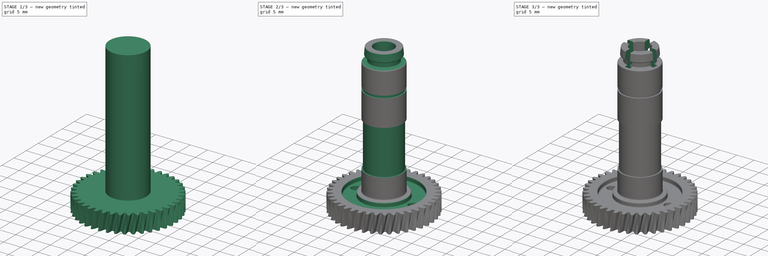
[diagram: build sequence overview — one tinted view per stage of 3, left to right]
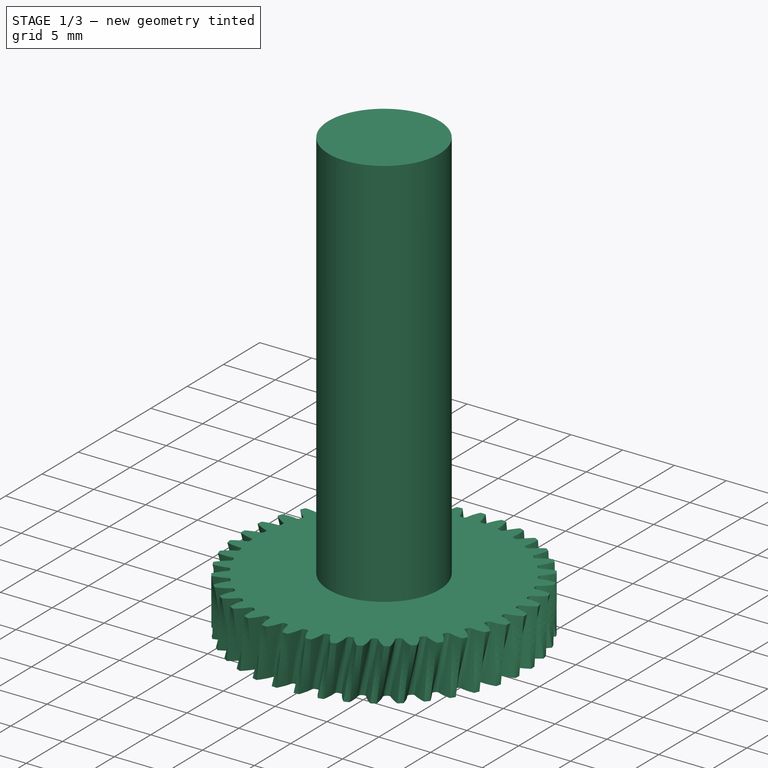
[diagram: stage 1 of 3 — iso view after this stage's code; geometry added in this stage tinted green]
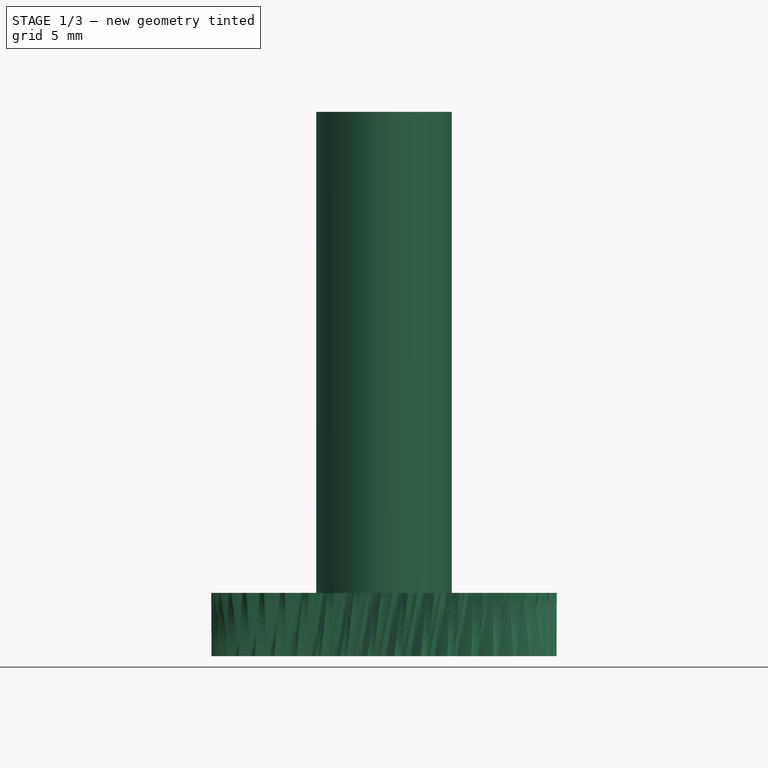
[diagram: stage 1 of 3 — front view after this stage's code; geometry added in this stage tinted green]
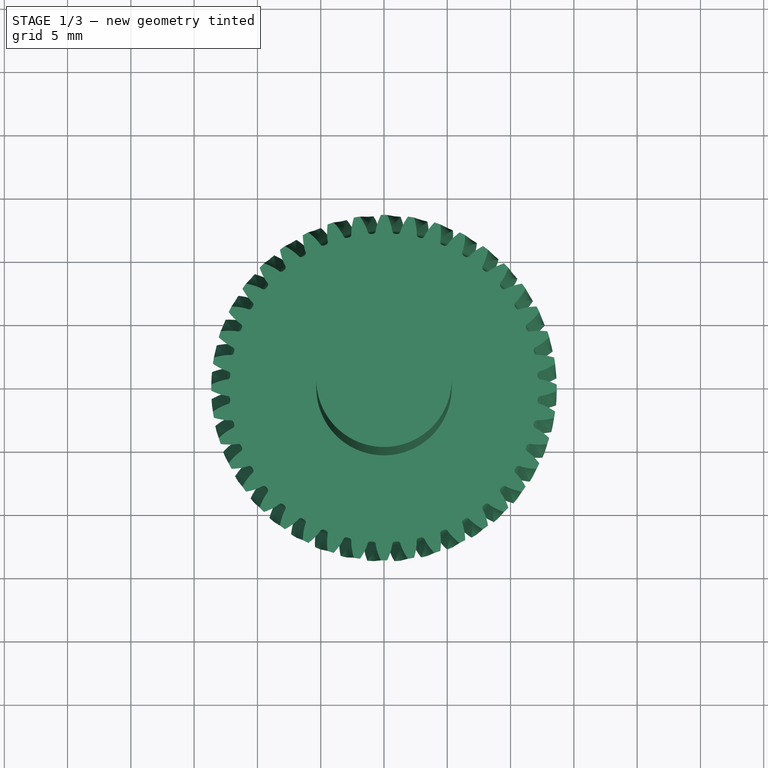
[diagram: stage 1 of 3 — top view after this stage's code; geometry added in this stage tinted green]
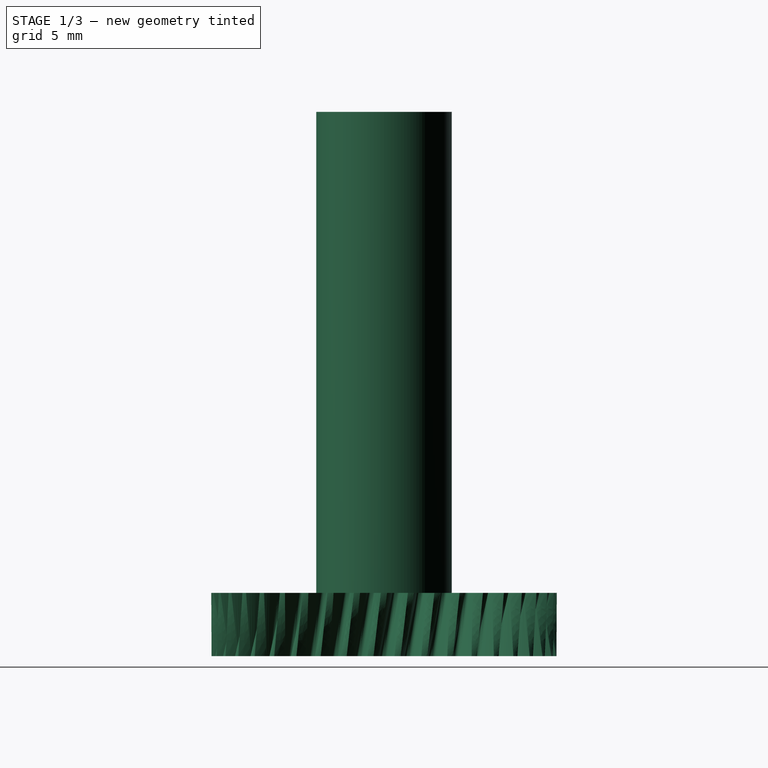
[diagram: stage 1 of 3 — right view after this stage's code; geometry added in this stage tinted green]
FCSTD DOCUMENT  (FreeCAD 1.0R39319 (Git))
Label: Mixer
License: All rights reserved
LicenseURL: https://en.wikipedia.org/wiki/All_rights_reserved
objects: Sketcher::SketchObject×5, PartDesign::Pocket×2, Part::Part2DObjectPython×1, PartDesign::SubShapeBinder×1, PartDesign::AdditiveLoft×1, PartDesign::Pad×1, PartDesign::Groove×1, PartDesign::Fillet×1, PartDesign::PolarPattern×1, PartDesign::Body×1
note: 33 computed .brp shape members not serialized (recipe doc carries the construction recipe); baked Part::Feature solids carry a one-line shape summary decoded from their .brp

FEATURE [Part::Part2DObjectPython] InvoluteGear  # Draft 2D object (typed FeaturePython)
  AddendumCoefficient = 1
  DedendumCoefficient = 1.25
  ExternalGear = true
  HighPrecision = true
  Modules = 0.65
  NumberOfTeeth = 40
  Placement = pos=(0,0,5) rot=(0,0,1;0rad)
  PressureAngle = 20
  ProfileShiftCoefficient = 0
  RootFilletCoefficient = 0.38
FEATURE [PartDesign::SubShapeBinder] Binder
  BindCopyOnChange = 0
  BindMode = 0
  ClaimChildren = false
  Context = -> Body [Binder.]
  Fuse = false
  MakeFace = true
  OffsetFill = false
  OffsetIntersection = false
  OffsetJoinType = 0
  OffsetOpenResult = false
  PartialLoad = false
  Placement = pos=(0,0,-5) rot=(0,0,-1;0.07854rad)
  Refine = true
  Relative = true
  Support = -> [InvoluteGear]
  _Version = 2
FEATURE [Sketcher::SketchObject] Sketch
  ArcFitTolerance = 1e-06
  AttachmentSupport = -> [XY_Plane]
  FullyConstrained = true
  MakeInternals = false
  MapMode = 5
  sketch-geometry (1):
    g0: Circle CenterX=0 CenterY=0 CenterZ=0 NormalX=0 NormalY=0 NormalZ=1 AngleXU=0 Radius=13.75
  constraints (2):
    c: Coincident(g0,g-1)
    c: Diameter(g0) = 27.5
FEATURE [PartDesign::AdditiveLoft] AdditiveLoft
  Closed = false
  Placement = pos=(0,0,-5) rot=(0,0,-1;0.07854rad)
  Profile = -> Binder
  Refine = true
  Ruled = false
  Sections = -> [InvoluteGear]
  Suppressed = false
FEATURE [Sketcher::SketchObject] Sketch001
  ArcFitTolerance = 1e-06
  AttachmentSupport = -> [XY_Plane]
  FullyConstrained = true
  MakeInternals = false
  MapMode = 5
  sketch-geometry (1):
    g0: Circle CenterX=0 CenterY=0 CenterZ=0 NormalX=0 NormalY=0 NormalZ=1 AngleXU=0 Radius=5.35
  constraints (2):
    c: Diameter(g0) = 10.7
    c: Coincident(g0,g-1)
FEATURE [PartDesign::Pad] Pad
  BaseFeature = -> AdditiveLoft
  Direction = (0,0,1)
  Length = 43
  Length2 = 10
  Placement = pos=(0,0,-5) rot=(0,0,-1;0.07854rad)
  Profile = -> Sketch001
  ReferenceAxis = -> Sketch001 [N_Axis]
  Refine = true
  Suppressed = false
  Type = 0
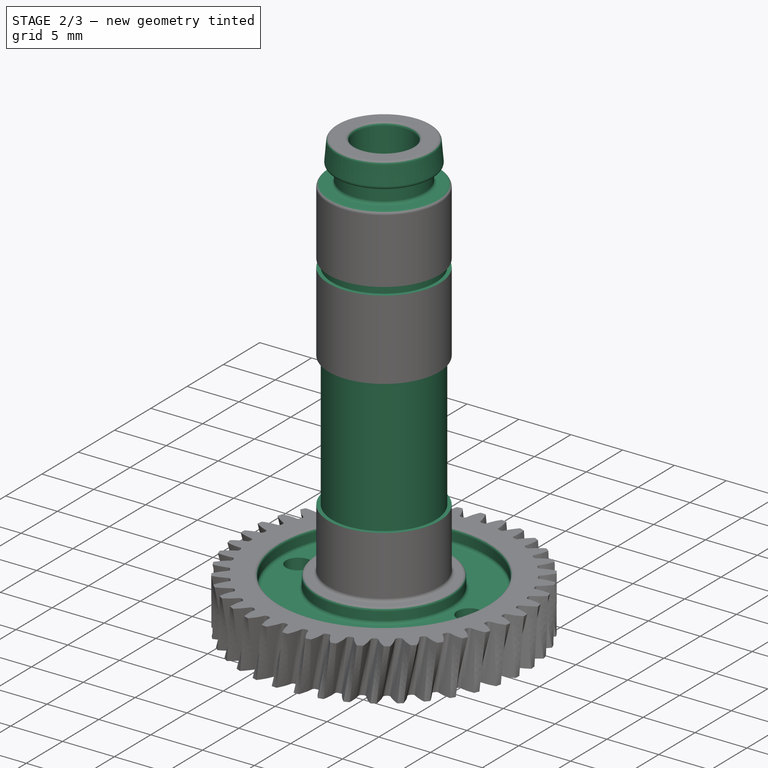
[diagram: stage 2 of 3 — iso view after this stage's code; geometry added in this stage tinted green]
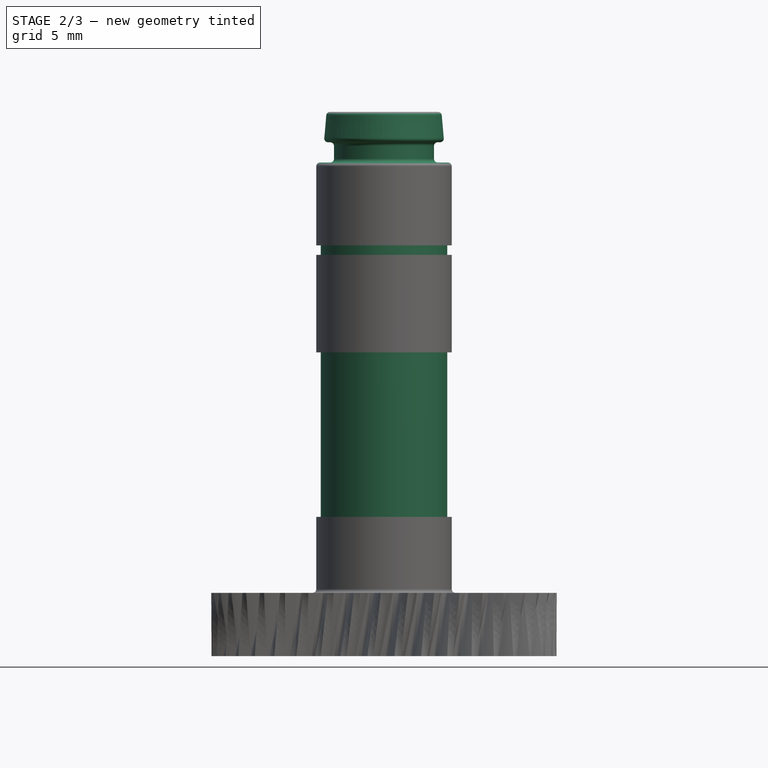
[diagram: stage 2 of 3 — front view after this stage's code; geometry added in this stage tinted green]
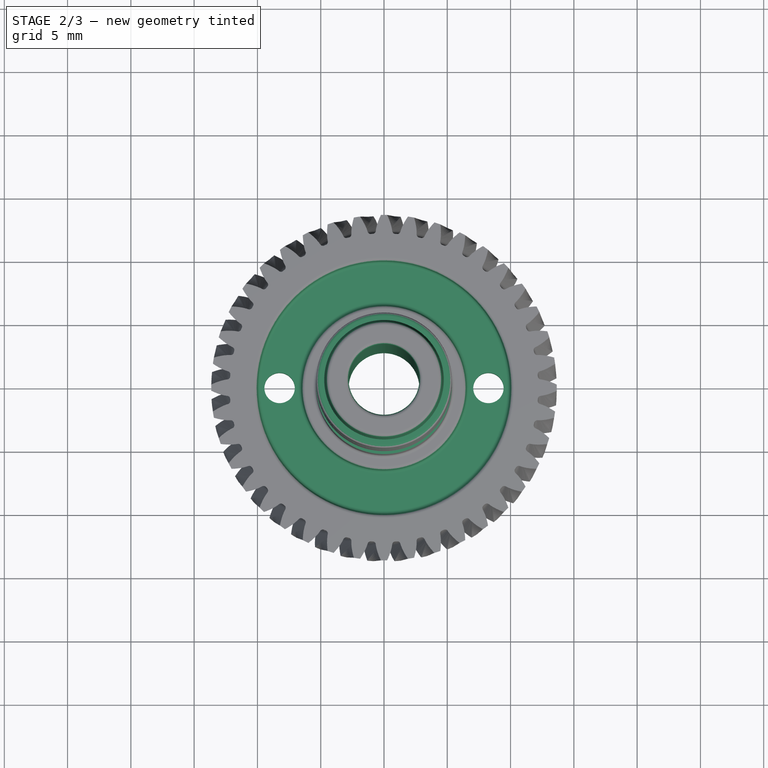
[diagram: stage 2 of 3 — top view after this stage's code; geometry added in this stage tinted green]
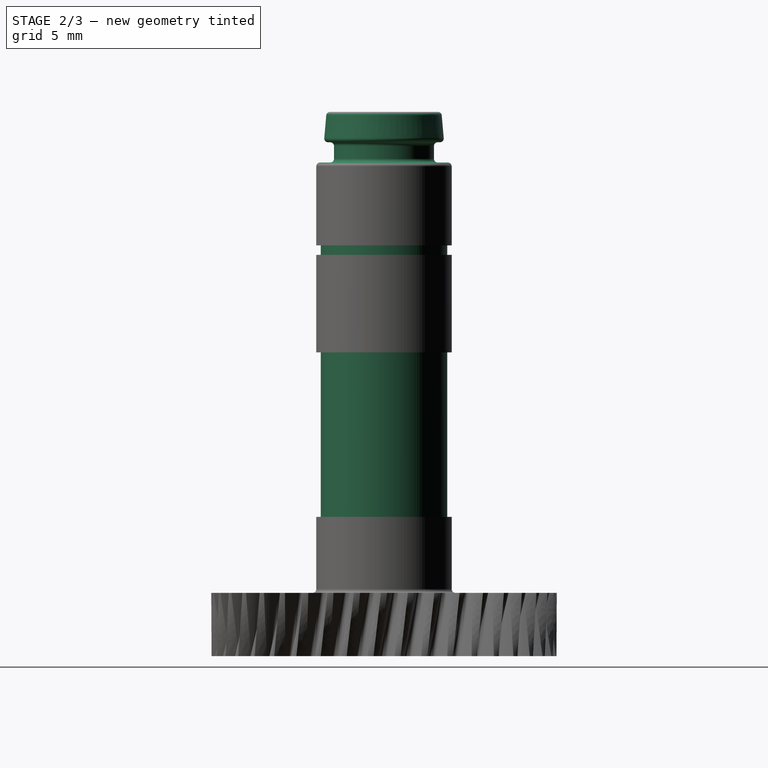
[diagram: stage 2 of 3 — right view after this stage's code; geometry added in this stage tinted green]
FEATURE [Sketcher::SketchObject] Sketch002
  ArcFitTolerance = 1e-06
  AttachmentSupport = -> [XZ_Plane]
  ExternalGeometry = -> [Pad]
  FullyConstrained = true
  MakeInternals = false
  MapMode = 5
  Placement = pos=(0,0,0) rot=(1,0,0;1.5708rad)
  sketch-geometry (32):
    g0: LineSegment StartX=0 StartY=0 StartZ=0 EndX=2.8 EndY=0 EndZ=0
    g1: LineSegment StartX=2.8 StartY=0 StartZ=0 EndX=2.8 EndY=43 EndZ=0
    g2: LineSegment StartX=2.8 StartY=43 StartZ=0 EndX=0 EndY=43 EndZ=0
    g3: LineSegment StartX=0 StartY=43 StartZ=0 EndX=0 EndY=0 EndZ=0
    g4: LineSegment StartX=6.5 StartY=0 StartZ=0 EndX=10 EndY=0 EndZ=0
    g5: LineSegment StartX=10 StartY=0 StartZ=0 EndX=10 EndY=1.4 EndZ=0
    g6: LineSegment StartX=10 StartY=1.4 StartZ=0 EndX=6.5 EndY=1.4 EndZ=0
    g7: LineSegment StartX=6.5 StartY=1.4 StartZ=0 EndX=6.5 EndY=0 EndZ=0
    g8: LineSegment StartX=10 StartY=5 StartZ=0 EndX=6.5 EndY=5 EndZ=0
    g9: LineSegment StartX=6.5 StartY=5 StartZ=0 EndX=6.5 EndY=3.6 EndZ=0
    g10: LineSegment StartX=6.5 StartY=3.6 StartZ=0 EndX=10 EndY=3.6 EndZ=0
    g11: LineSegment StartX=10 StartY=3.6 StartZ=0 EndX=10 EndY=5 EndZ=0
    g12: LineSegment StartX=5.35 StartY=24 StartZ=0 EndX=5 EndY=24 EndZ=0
    g13: LineSegment StartX=5 StartY=24 StartZ=0 EndX=5 EndY=11 EndZ=0
    g14: LineSegment StartX=5 StartY=11 StartZ=0 EndX=5.35 EndY=11 EndZ=0
    g15: LineSegment StartX=5.35 StartY=11 StartZ=0 EndX=5.35 EndY=24 EndZ=0
    g16: LineSegment StartX=5.35 StartY=32.45 StartZ=0 EndX=5 EndY=32.45 EndZ=0
    g17: LineSegment StartX=5 StartY=32.45 StartZ=0 EndX=5 EndY=31.7 EndZ=0
    g18: LineSegment StartX=5 StartY=31.7 StartZ=0 EndX=5.35 EndY=31.7 EndZ=0
    g19: LineSegment StartX=5.35 StartY=31.7 StartZ=0 EndX=5.35 EndY=32.45 EndZ=0
    g20: LineSegment StartX=5.35 StartY=39 StartZ=0 EndX=3.95 EndY=39 EndZ=0
    g21: LineSegment StartX=3.95 StartY=39 StartZ=0 EndX=3.95 EndY=40.6 EndZ=0
    g22: LineSegment StartX=3.95 StartY=40.6 StartZ=0 EndX=4.75 EndY=40.6 EndZ=0
    g23: LineSegment StartX=4.75 StartY=40.6 StartZ=0 EndX=4.54003 EndY=43 EndZ=0
    g24: LineSegment StartX=4.54003 StartY=43 StartZ=0 EndX=5.35 EndY=43 EndZ=0
    g25: LineSegment StartX=5.35 StartY=43 StartZ=0 EndX=5.35 EndY=39 EndZ=0
    g26: GeomPoint X=-2.8 Y=0 Z=0
    g27: GeomPoint X=-10 Y=0 Z=0
    g28: GeomPoint X=-5 Y=11 Z=0
    g29: GeomPoint X=-5 Y=31.7 Z=0
    g30: GeomPoint X=-3.95 Y=39 Z=0
    g31: GeomPoint X=-4.75 Y=40.6 Z=0
  constraints (82):
    c: Coincident(g0,g1)
    c: Coincident(g1,g2)
    c: Coincident(g2,g3)
    c: Coincident(g3,g0)
    c: Horizontal(g0)
    c: Horizontal(g2)
    c: Vertical(g1)
    c: Vertical(g3)
    c: Coincident(g0,g-1)
    c: Coincident(g4,g5)
    c: Coincident(g5,g6)
    c: Coincident(g6,g7)
    c: Coincident(g7,g4)
    c: Horizontal(g4)
    c: Horizontal(g6)
    c: Vertical(g5)
    c: Vertical(g7)
    c: PointOnObject(g4,g-1)
    c: Coincident(g8,g9)
    c: Coincident(g9,g10)
    c: Coincident(g10,g11)
    c: Coincident(g11,g8)
    c: Horizontal(g8)
    c: Horizontal(g10)
    c: Vertical(g9)
    c: Vertical(g11)
    c: Coincident(g12,g13)
    c: Coincident(g13,g14)
    c: Coincident(g14,g15)
    c: Coincident(g15,g12)
    c: Horizontal(g12)
    c: Horizontal(g14)
    c: Vertical(g13)
    c: Vertical(g15)
    c: Coincident(g16,g17)
    c: Coincident(g17,g18)
    c: Coincident(g18,g19)
    c: Coincident(g19,g16)
    c: Horizontal(g16)
    c: Horizontal(g18)
    c: Vertical(g17)
    c: Vertical(g19)
    c: Horizontal(g20)
    c: Coincident(g20,g21)
    c: Vertical(g21)
    c: Coincident(g21,g22)
    c: Horizontal(g22)
    c: Coincident(g22,g23)
    c: Coincident(g23,g24)
    c: Horizontal(g24)
    c: Coincident(g24,g25)
    c: Coincident(g25,g20)
    c: Symmetric(g26,g0,g-2)
    c: Distance(g26,g0) = 5.6
    c: PointOnObject(g2,g-3)
    c: Vertical(g10,g5)
    c: Equal(g6,g10)
    c: Equal(g5,g11)
    c: PointOnObject(g8,g-4)
    c: Symmetric(g27,g4,g-2)
    c: DistanceX(g27,g4) = 20
    c: Distance(g5,g5) = 1.4
    c: Distance(g4,g4) = 3.5
    c: PointOnObject(g14,g-5)
    c: Symmetric(g28,g13,g-2)
    c: DistanceX(g28,g13) = 10
    c: DistanceY(g15,g15) = 13
    c: DistanceY(g-1,g14) = 11
    c: PointOnObject(g18,g-5)
    c: Distance(g19,g19) = 0.75
    c: Symmetric(g29,g17,g-2)
    c: DistanceX(g29,g17) = 10
    c: Distance(g18,g-1) = 31.7
    c: Vertical(g25)
    c: Coincident(g24,g-5)
    c: Distance(g20,g-1) = 39
    c: Distance(g21,g21) = 1.6
    c: Symmetric(g30,g20,g-2)
    c: DistanceX(g30,g20) = 7.9
    c: Symmetric(g31,g22,g-2)
    c: DistanceX(g31,g22) = 9.5
    c: Angle(g-2,g23) = 0.0872665
FEATURE [PartDesign::Groove] Groove
  Angle = 360
  Angle2 = 60
  Axis = (0,2e-16,1)
  Base = (0,0,0)
  BaseFeature = -> Pad
  Placement = pos=(0,0,-5) rot=(0,0,-1;0.07854rad)
  Profile = -> Sketch002
  ReferenceAxis = -> Sketch002 [V_Axis]
  Refine = true
  Suppressed = false
  Type = 0
FEATURE [Sketcher::SketchObject] Sketch003
  ArcFitTolerance = 1e-06
  AttachmentSupport = -> [Groove]
  FullyConstrained = true
  MakeInternals = false
  MapMode = 5
  Placement = pos=(0,0,43) rot=(0,0,-1;0.07854rad)
  sketch-geometry (5):
    g0: LineSegment StartX=0 StartY=0.75 StartZ=0 EndX=0 EndY=-0.75 EndZ=0
    g1: LineSegment StartX=0 StartY=-0.75 StartZ=0 EndX=4.75 EndY=-0.75 EndZ=0
    g2: LineSegment StartX=4.75 StartY=-0.75 StartZ=0 EndX=4.75 EndY=0.75 EndZ=0
    g3: LineSegment StartX=4.75 StartY=0.75 StartZ=0 EndX=0 EndY=0.75 EndZ=0
    g4: GeomPoint X=-4.75 Y=-0.75 Z=0
  constraints (12):
    c: Coincident(g0,g1)
    c: Coincident(g1,g2)
    c: Coincident(g2,g3)
    c: Coincident(g3,g0)
    c: Vertical(g0)
    c: Vertical(g2)
    c: Horizontal(g1)
    c: Horizontal(g3)
    c: Symmetric(g0,g0,g-1)
    c: DistanceY(g2,g2) = 1.5
    c: Symmetric(g4,g1,g-2)
    c: Distance(g4,g1) = 9.5
FEATURE [PartDesign::Fillet] Fillet
  Base = -> Groove [Face325,Edge324,Face329,Edge645,Face326,Face330,Face341,Face337,Face333]
  BaseFeature = -> Groove
  Placement = pos=(0,0,-5) rot=(0,0,-1;0.07854rad)
  Radius = 0.3
  Refine = true
  SupportTransform = false
  Suppressed = false
  UseAllEdges = false
FEATURE [Sketcher::SketchObject] Sketch004
  ArcFitTolerance = 1e-06
  AttachmentSupport = -> [XY_Plane]
  FullyConstrained = true
  MakeInternals = false
  MapMode = 5
  sketch-geometry (2):
    g0: Circle CenterX=8.25 CenterY=0 CenterZ=0 NormalX=0 NormalY=0 NormalZ=1 AngleXU=0 Radius=1.2
    g1: Circle CenterX=-8.25 CenterY=0 CenterZ=0 NormalX=0 NormalY=0 NormalZ=1 AngleXU=0 Radius=1.2
  constraints (5):
    c: PointOnObject(g0,g-1)
    c: Symmetric(g1,g0,g-2)
    c: Equal(g1,g0)
    c: Diameter(g0) = 2.4
    c: DistanceX(g1,g0) = 16.5
FEATURE [PartDesign::Pocket] Pocket001
  BaseFeature = -> Fillet
  Direction = (0,0,-1)
  Length = 5
  Length2 = 5
  Placement = pos=(0,0,-5) rot=(0,0,-1;0.07854rad)
  Profile = -> Sketch004
  ReferenceAxis = -> Sketch004 [N_Axis]
  Refine = true
  Reversed = true
  Suppressed = false
  Type = 1
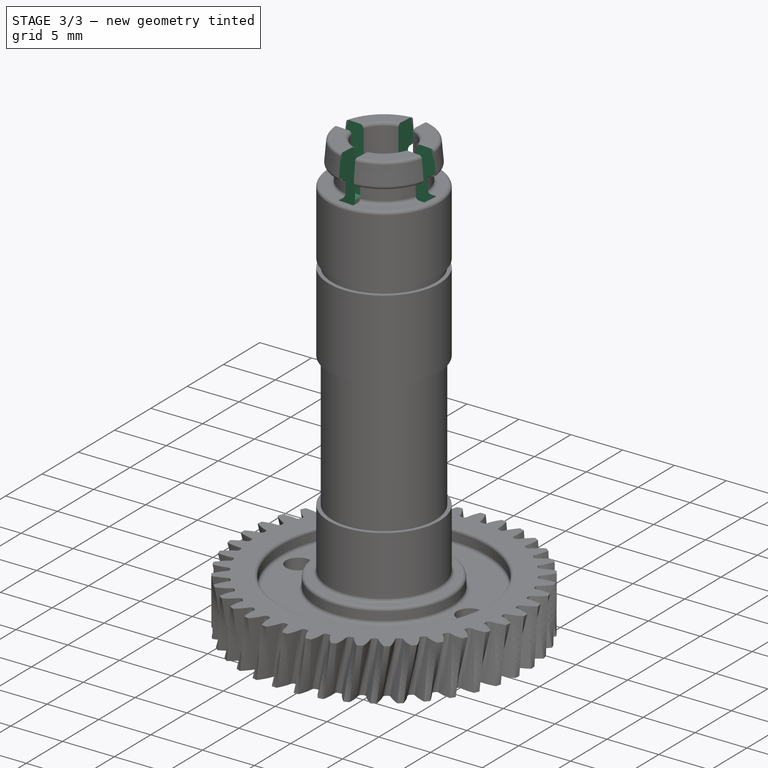
[diagram: stage 3 of 3 — iso view after this stage's code; geometry added in this stage tinted green]
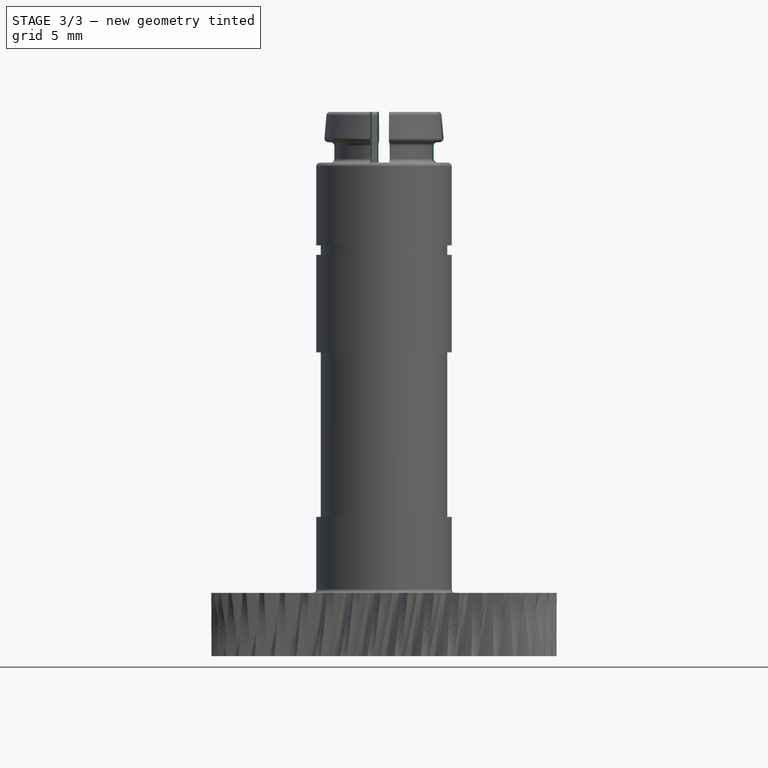
[diagram: stage 3 of 3 — front view after this stage's code; geometry added in this stage tinted green]
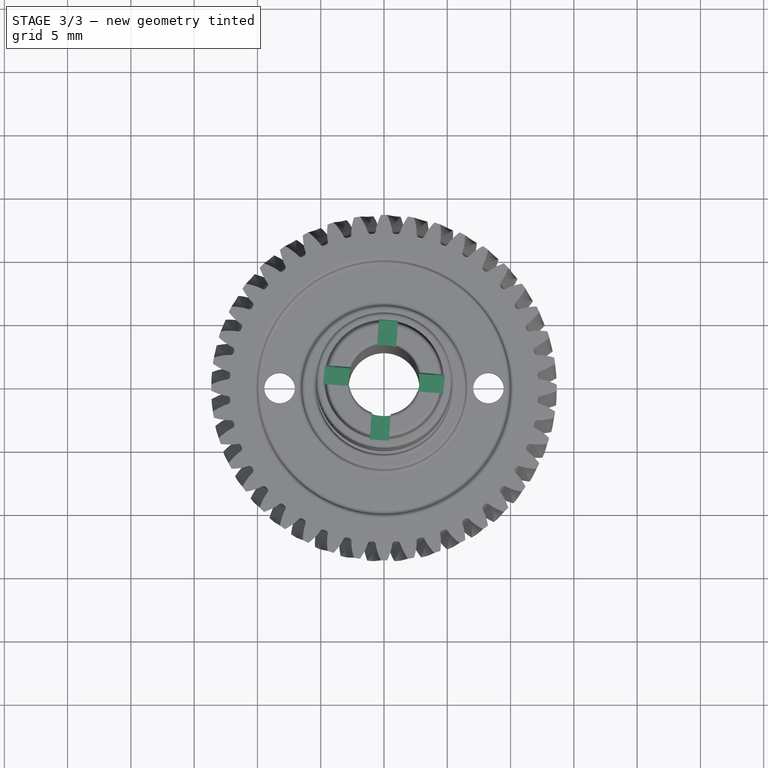
[diagram: stage 3 of 3 — top view after this stage's code; geometry added in this stage tinted green]
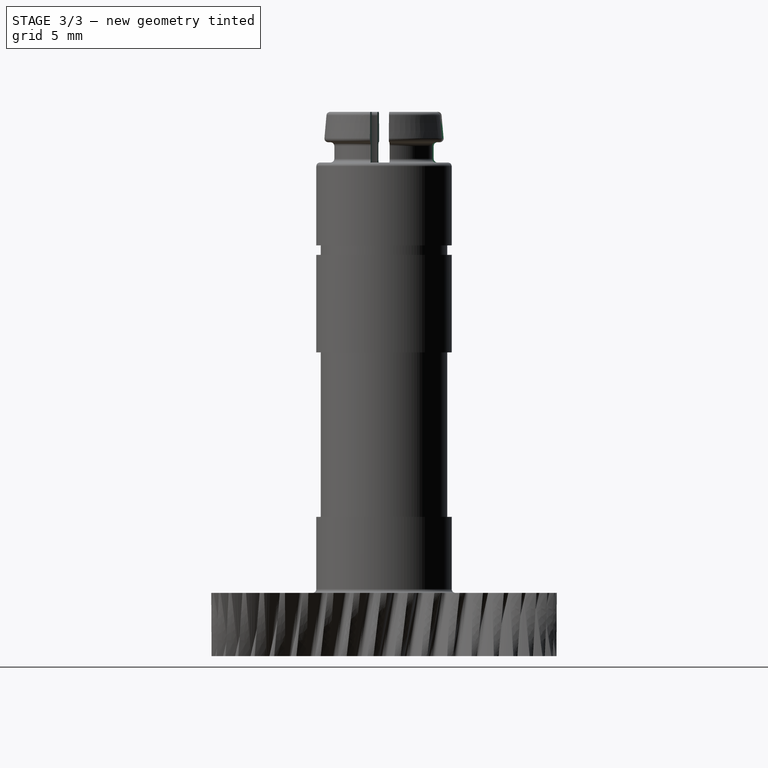
[diagram: stage 3 of 3 — right view after this stage's code; geometry added in this stage tinted green]
FEATURE [PartDesign::Pocket] Pocket
  BaseFeature = -> Pocket001
  Direction = (0,0,-1)
  Length = 6.2
  Length2 = 5
  Placement = pos=(0,0,-5) rot=(0,0,-1;0.07854rad)
  Profile = -> Sketch003
  ReferenceAxis = -> Sketch003 [N_Axis]
  Refine = true
  Suppressed = false
  Type = 0
FEATURE [PartDesign::PolarPattern] PolarPattern
  Angle = 360
  Axis = -> Sketch003 [N_Axis]
  BaseFeature = -> Pocket
  Mode = 0
  Occurrences = 4
  Offset = 120
  Originals = -> [Pocket]
  Placement = pos=(0,0,-5) rot=(0,0,-1;0.07854rad)
  Refine = true
  Suppressed = false
  TransformMode = 0
FEATURE [PartDesign::Body] Body  label="Körper"
  AllowCompound = false
  Group = -> [InvoluteGear,Binder,Sketch,AdditiveLoft,Sketch001,Pad,Sketch002,Groove,Sketch003,Fillet,Sketch004,Pocket001,Pocket,PolarPattern]
  Origin = -> Origin
  Tip = -> PolarPattern
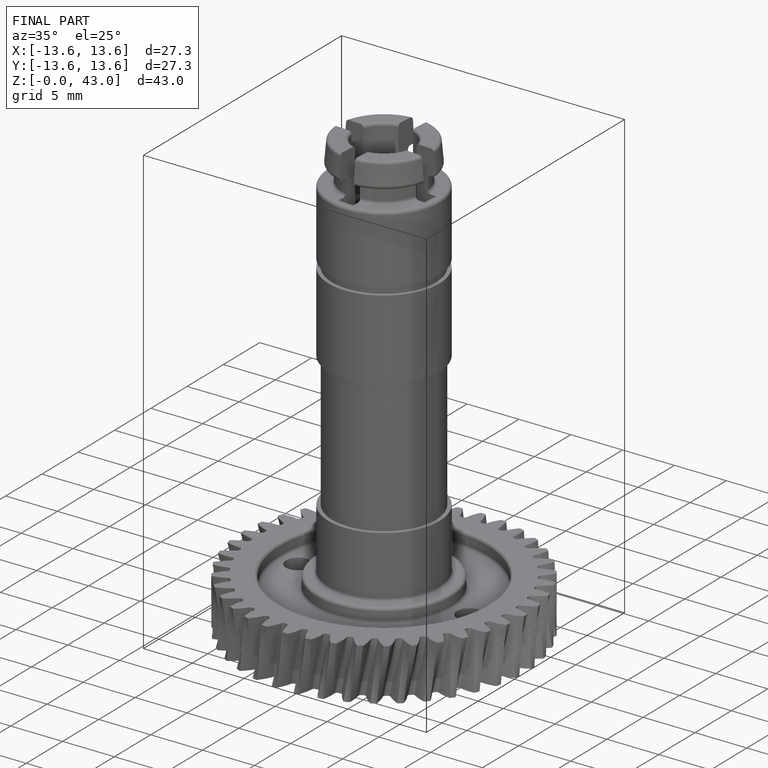
[diagram: finished part — iso view with bounding-box wireframe]
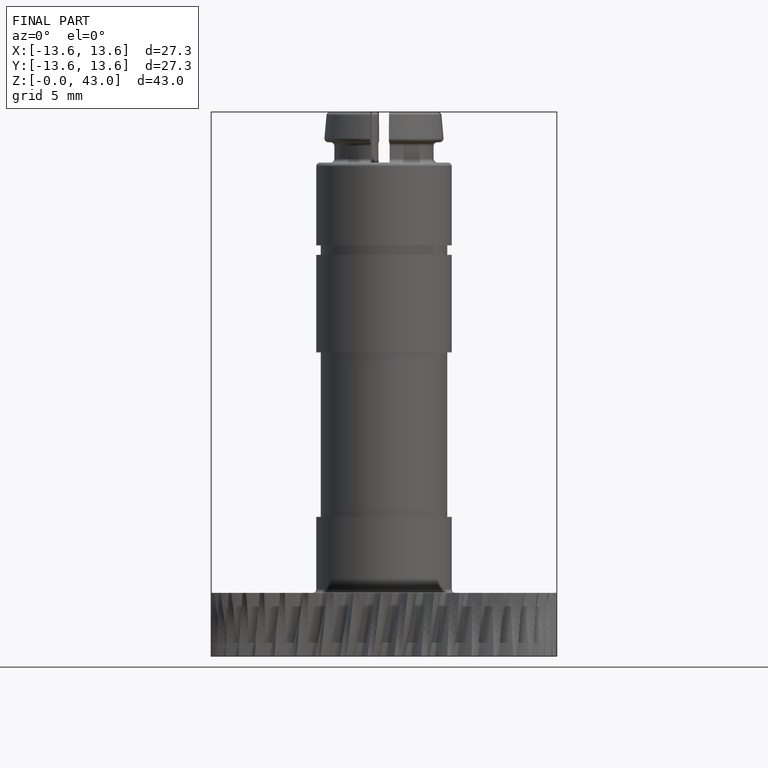
[diagram: finished part — front view with bounding-box wireframe]
